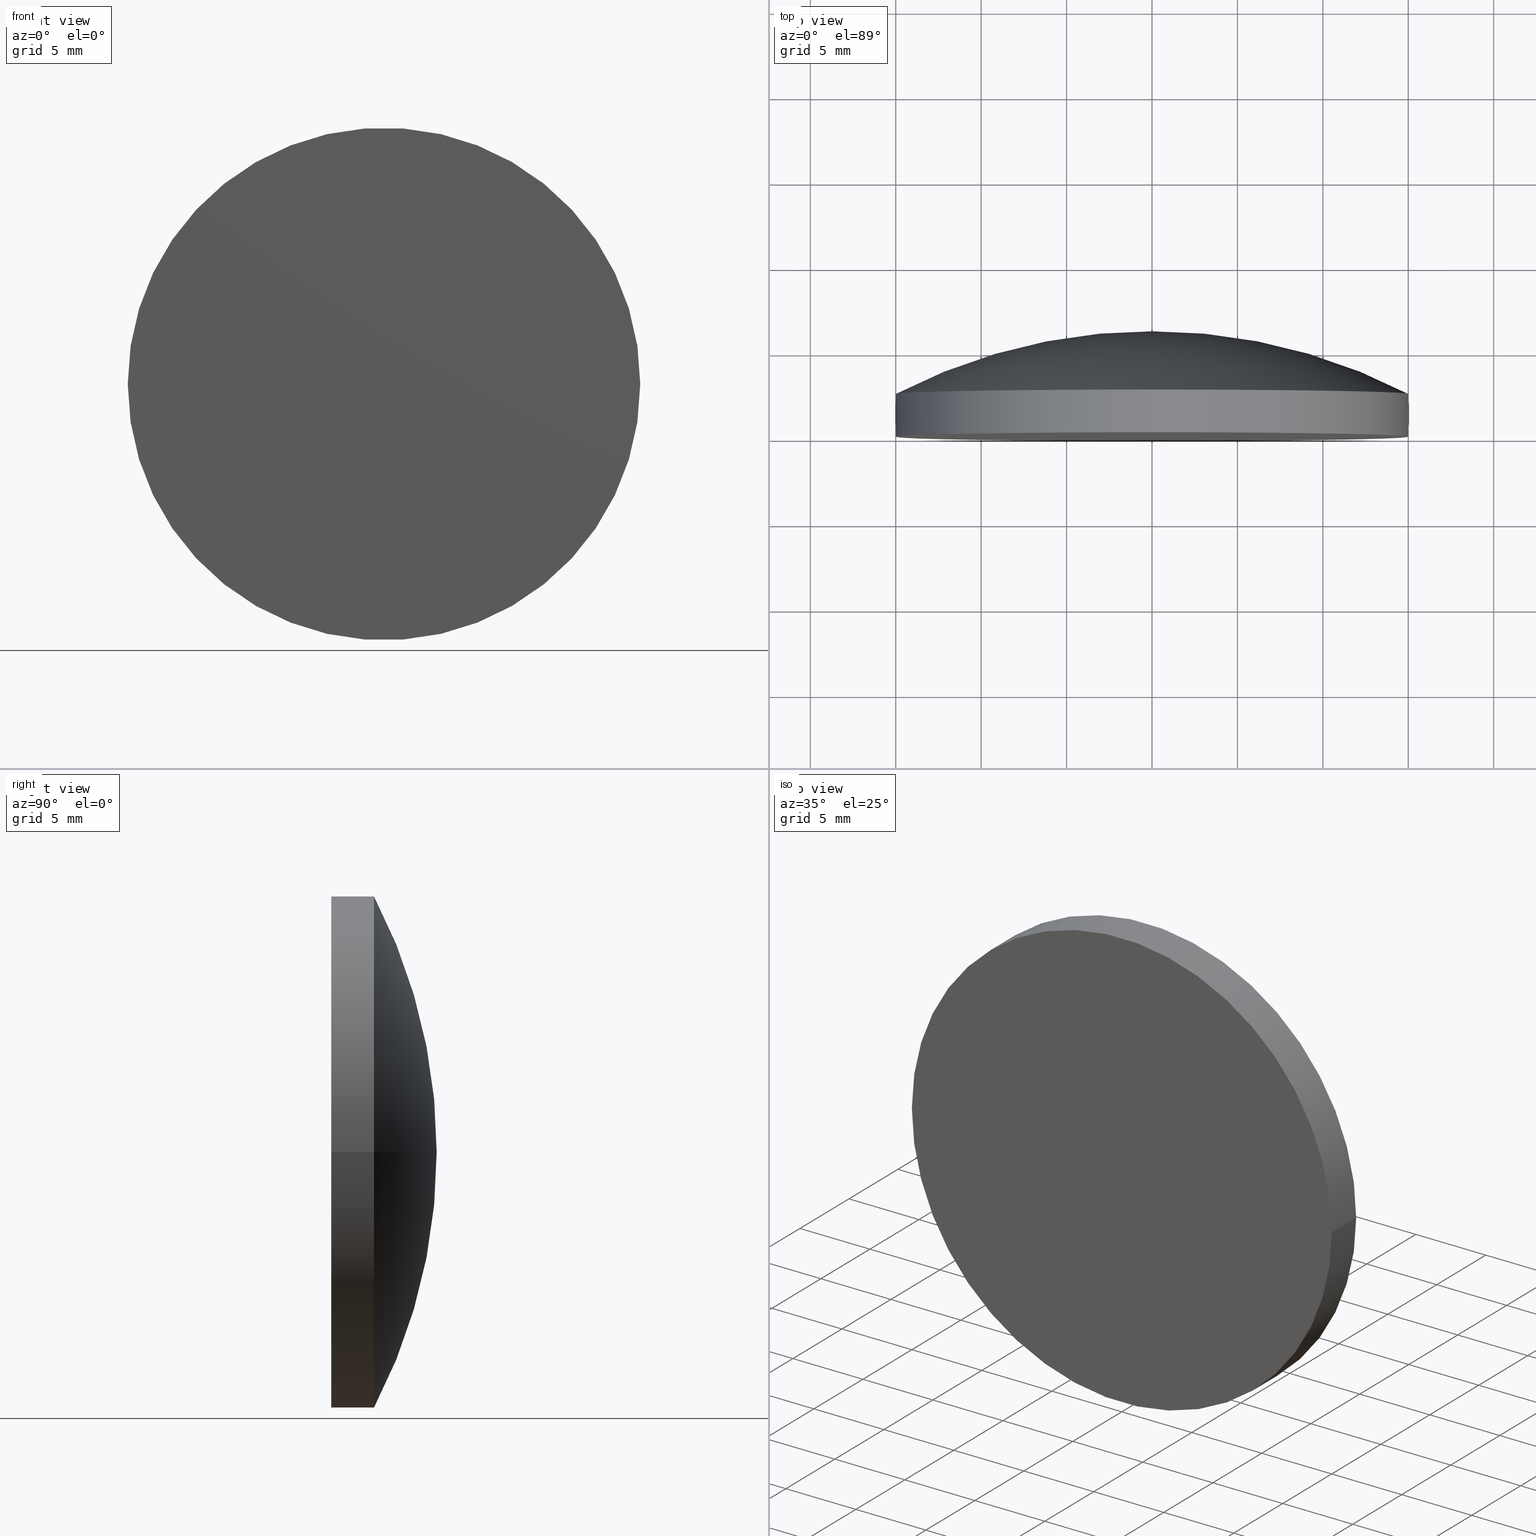
[diagram: canonical four-view strip — front | top / right | iso, engineering-drawing reading convention]
A machine part, canonical four-view strip (front | top / right | iso — engineering-drawing reading convention). The complete STEP part file that produces these views, byte-faithful:
ISO-10303-21;
HEADER;
FILE_DESCRIPTION (( 'STEP AP203' ),
    '1' );
FILE_NAME ('100573.STEP',
    '2024-05-09T08:19:51',
    ( '' ),
    ( '' ),
    'SwSTEP 2.0',
    'SolidWorks 2020',
    '' );
FILE_SCHEMA (( 'CONFIG_CONTROL_DESIGN' ));
ENDSEC;

DATA;
#1 = DIRECTION ( 'NONE',  ( -1.000000000000000000, 2.242870150788508378E-17, 0.000000000000000000 ) ) ;
#2 =( NAMED_UNIT ( * ) PLANE_ANGLE_UNIT ( ) SI_UNIT ( $, .RADIAN. ) );
#3 = COORDINATED_UNIVERSAL_TIME_OFFSET ( 8, 0, .AHEAD. ) ;
#4 = DIRECTION ( 'NONE',  ( 2.242870150788507762E-17, 1.000000000000000000, -0.000000000000000000 ) ) ;
#5 = AXIS2_PLACEMENT_3D ( 'NONE', #77, #144, #67 ) ;
#6 = LOCAL_TIME ( 16, 19, 51.00000000000000000, #181 ) ;
#7 = ADVANCED_FACE ( 'NONE', ( #185 ), #138, .T. ) ;
#8 = CARTESIAN_POINT ( 'NONE',  ( -2.407412430484044816E-32, -1.734723475976807094E-15, 0.000000000000000000 ) ) ;
#9 = APPROVAL ( #25, 'δָ��' ) ;
#10 = CC_DESIGN_APPROVAL ( #115, ( #146 ) ) ;
#11 = AXIS2_PLACEMENT_3D ( 'NONE', #190, #4, #35 ) ;
#12 = CIRCLE ( 'NONE', #159, 32.50000000000000711 ) ;
#13 = EDGE_LOOP ( 'NONE', ( #170, #168, #19, #45 ) ) ;
#14 = CC_DESIGN_PERSON_AND_ORGANIZATION_ASSIGNMENT ( #110, #176, ( #111 ) ) ;
#15 = DATE_TIME_ROLE ( 'creation_date' ) ;
#16 = DIRECTION ( 'NONE',  ( 2.242870150788507762E-17, 1.000000000000000000, -0.000000000000000000 ) ) ;
#17 = CALENDAR_DATE ( 2024, 9, 5 ) ;
#18 = SHAPE_DEFINITION_REPRESENTATION ( #59, #171 ) ;
#19 = ORIENTED_EDGE ( 'NONE', *, *, #46, .F. ) ;
#20 = PRODUCT_RELATED_PRODUCT_CATEGORY ( 'detail', '', ( #111 ) ) ;
#21 = DIRECTION ( 'NONE',  ( 2.242870150788507762E-17, 1.000000000000000000, -0.000000000000000000 ) ) ;
#22 = DIRECTION ( 'NONE',  ( 2.242870150788507762E-17, 1.000000000000000000, -0.000000000000000000 ) ) ;
#23 = CC_DESIGN_APPROVAL ( #9, ( #64 ) ) ;
#24 = CC_DESIGN_PERSON_AND_ORGANIZATION_ASSIGNMENT ( #39, #54, ( #64 ) ) ;
#25 = APPROVAL_STATUS ( 'not_yet_approved' ) ;
#26 = AXIS2_PLACEMENT_3D ( 'NONE', #8, #16, #1 ) ;
#27 = ORIENTED_EDGE ( 'NONE', *, *, #145, .T. ) ;
#28 = ORIENTED_EDGE ( 'NONE', *, *, #188, .T. ) ;
#29 = ORIENTED_EDGE ( 'NONE', *, *, #145, .F. ) ;
#30 = CC_DESIGN_PERSON_AND_ORGANIZATION_ASSIGNMENT ( #189, #174, ( #146 ) ) ;
#31 = DIRECTION ( 'NONE',  ( -1.000000000000000000, 2.242870150788507762E-17, 0.000000000000000000 ) ) ;
#32 = APPLICATION_PROTOCOL_DEFINITION ( 'international standard', 'config_control_design', 1994, #101 ) ;
#33 = CYLINDRICAL_SURFACE ( 'NONE', #164, 15.00000000000000000 ) ;
#34 = ADVANCED_FACE ( 'NONE', ( #154 ), #136, .T. ) ;
#35 = DIRECTION ( 'NONE',  ( -1.000000000000000000, 2.891205793294678696E-17, 0.000000000000000000 ) ) ;
#36 = FACE_OUTER_BOUND ( 'NONE', #156, .T. ) ;
#37 = APPROVAL_DATE_TIME ( #51, #180 ) ;
#38 = CC_DESIGN_PERSON_AND_ORGANIZATION_ASSIGNMENT ( #153, #194, ( #90 ) ) ;
#39 = PERSON_AND_ORGANIZATION ( #78, #175 ) ;
#40 = CIRCLE ( 'NONE', #92, 15.00000000000000000 ) ;
#41 = CARTESIAN_POINT ( 'NONE',  ( -15.00000000000000000, 6.169999999999999929, 0.000000000000000000 ) ) ;
#42 = COORDINATED_UNIVERSAL_TIME_OFFSET ( 8, 0, .AHEAD. ) ;
#43 = EDGE_CURVE ( 'NONE', #127, #72, #56, .T. ) ;
#44 = CIRCLE ( 'NONE', #5, 32.50000000000000711 ) ;
#45 = ORIENTED_EDGE ( 'NONE', *, *, #43, .F. ) ;
#46 = EDGE_CURVE ( 'NONE', #72, #125, #40, .T. ) ;
#47 = DIRECTION ( 'NONE',  ( -0.000000000000000000, 0.000000000000000000, -1.000000000000000000 ) ) ;
#48 = DIRECTION ( 'NONE',  ( -2.242870150788507762E-17, -1.000000000000000000, 0.000000000000000000 ) ) ;
#49 = DIRECTION ( 'NONE',  ( 2.242870150788507762E-17, 1.000000000000000000, -0.000000000000000000 ) ) ;
#50 = MANIFOLD_SOLID_BREP ( '��ת2', #113 ) ;
#51 = DATE_AND_TIME ( #17, #6 ) ;
#52 = CC_DESIGN_PERSON_AND_ORGANIZATION_ASSIGNMENT ( #133, #187, ( #146 ) ) ;
#53 = CALENDAR_DATE ( 2024, 9, 5 ) ;
#54 = PERSON_AND_ORGANIZATION_ROLE ( 'creator' ) ;
#55 = AXIS2_PLACEMENT_3D ( 'NONE', #102, #197, #74 ) ;
#56 = LINE ( 'NONE', #41, #198 ) ;
#57 = ORIENTED_EDGE ( 'NONE', *, *, #132, .F. ) ;
#58 = EDGE_LOOP ( 'NONE', ( #29, #28, #163 ) ) ;
#59 = PRODUCT_DEFINITION_SHAPE ( 'NONE', 'NONE',  #64 ) ;
#60 = CC_DESIGN_DATE_AND_TIME_ASSIGNMENT ( #70, #82, ( #90 ) ) ;
#61 = PERSON_AND_ORGANIZATION ( #78, #175 ) ;
#62 =( NAMED_UNIT ( * ) SI_UNIT ( $, .STERADIAN. ) SOLID_ANGLE_UNIT ( ) );
#63 = DATE_AND_TIME ( #109, #96 ) ;
#64 = PRODUCT_DEFINITION ( 'δ֪', '', #146, #95 ) ;
#65 = TOROIDAL_SURFACE ( 'NONE', #80, -0.002703305825795567375, 32.50000000000000711 ) ;
#66 = UNCERTAINTY_MEASURE_WITH_UNIT (LENGTH_MEASURE( 1.000000000000000082E-05 ), #98, 'distance_accuracy_value', 'NONE');
#67 = DIRECTION ( 'NONE',  ( 1.000000000000000000, 0.000000000000000000, 1.224646799147353454E-16 ) ) ;
#68 = LOCAL_TIME ( 16, 19, 51.00000000000000000, #195 ) ;
#69 = APPROVAL_PERSON_ORGANIZATION ( #84, #9, #199 ) ;
#70 = DATE_AND_TIME ( #53, #68 ) ;
#71 = DIRECTION ( 'NONE',  ( 2.242870150788507762E-17, 1.000000000000000000, -0.000000000000000000 ) ) ;
#72 = VERTEX_POINT ( 'NONE', #165 ) ;
#73 = CALENDAR_DATE ( 2024, 9, 5 ) ;
#74 = DIRECTION ( 'NONE',  ( -1.000000000000000000, 0.000000000000000000, 0.000000000000000000 ) ) ;
#75 = EDGE_LOOP ( 'NONE', ( #126, #27, #57 ) ) ;
#76 = AXIS2_PLACEMENT_3D ( 'NONE', #123, #196, #182 ) ;
#77 = CARTESIAN_POINT ( 'NONE',  ( -0.002703305825796158048, -26.32999988757135412, -3.310594826676934179E-19 ) ) ;
#78 = PERSON ( 'δָ��', 'δָ��', 'δָ��', ('δָ��'), ('δָ��'), ('δָ��') ) ;
#79 = APPLICATION_PROTOCOL_DEFINITION ( 'international standard', 'config_control_design', 1994, #139 ) ;
#80 = AXIS2_PLACEMENT_3D ( 'NONE', #108, #49, #31 ) ;
#81 = CARTESIAN_POINT ( 'NONE',  ( 15.00000000000000178, 2.499999999999997780, 1.836970198721029983E-15 ) ) ;
#82 = DATE_TIME_ROLE ( 'classification_date' ) ;
#83 = CARTESIAN_POINT ( 'NONE',  ( -2.407412430484044816E-32, -1.734723475976807094E-15, 0.000000000000000000 ) ) ;
#84 = PERSON_AND_ORGANIZATION ( #78, #175 ) ;
#85 = ORIENTED_EDGE ( 'NONE', *, *, #43, .T. ) ;
#86 = LOCAL_TIME ( 16, 19, 51.00000000000000000, #122 ) ;
#87 = CARTESIAN_POINT ( 'NONE',  ( 15.00000000000000000, 6.169999999999999929, 1.836970198721029589E-15 ) ) ;
#88 = AXIS2_PLACEMENT_3D ( 'NONE', #151, #48, #161 ) ;
#89 = DATE_AND_TIME ( #73, #184 ) ;
#90 = SECURITY_CLASSIFICATION ( '', '', #97 ) ;
#91 = ORIENTED_EDGE ( 'NONE', *, *, #155, .F. ) ;
#92 = AXIS2_PLACEMENT_3D ( 'NONE', #157, #167, #103 ) ;
#93 = FACE_OUTER_BOUND ( 'NONE', #201, .T. ) ;
#94 = MECHANICAL_CONTEXT ( 'NONE', #101, 'mechanical' ) ;
#95 = DESIGN_CONTEXT ( 'detailed design', #139, 'design' ) ;
#96 = LOCAL_TIME ( 16, 19, 51.00000000000000000, #3 ) ;
#97 = SECURITY_CLASSIFICATION_LEVEL ( 'unclassified' ) ;
#98 =( LENGTH_UNIT ( ) NAMED_UNIT ( * ) SI_UNIT ( .MILLI., .METRE. ) );
#99 = EDGE_CURVE ( 'NONE', #106, #125, #183, .T. ) ;
#100 = PERSON_AND_ORGANIZATION ( #78, #175 ) ;
#101 = APPLICATION_CONTEXT ( 'configuration controlled 3d designs of mechanical parts and assemblies' ) ;
#102 = CARTESIAN_POINT ( 'NONE',  ( 1.383850883036509511E-16, 6.169999999999999929, 0.000000000000000000 ) ) ;
#103 = DIRECTION ( 'NONE',  ( -1.000000000000000000, 2.891205793294678696E-17, 0.000000000000000000 ) ) ;
#104 = CALENDAR_DATE ( 2024, 9, 5 ) ;
#105 = ORIENTED_EDGE ( 'NONE', *, *, #188, .F. ) ;
#106 = VERTEX_POINT ( 'NONE', #141 ) ;
#107 = AXIS2_PLACEMENT_3D ( 'NONE', #83, #71, #191 ) ;
#108 = CARTESIAN_POINT ( 'NONE',  ( -5.903819642362473363E-16, -26.32999988757135412, 0.000000000000000000 ) ) ;
#109 = CALENDAR_DATE ( 2024, 9, 5 ) ;
#110 = PERSON_AND_ORGANIZATION ( #78, #175 ) ;
#111 = PRODUCT ( '100573', '100573', '', ( #94 ) ) ;
#112 = PLANE ( 'NONE',  #88 ) ;
#113 = CLOSED_SHELL ( 'NONE', ( #7, #140, #34, #142, #169 ) ) ;
#114 = EDGE_CURVE ( 'NONE', #106, #127, #152, .T. ) ;
#115 = APPROVAL ( #128, 'δָ��' ) ;
#116 = CIRCLE ( 'NONE', #26, 15.00000000000000000 ) ;
#117 = APPROVAL_STATUS ( 'not_yet_approved' ) ;
#118 = ORIENTED_EDGE ( 'NONE', *, *, #114, .F. ) ;
#119 = CC_DESIGN_APPROVAL ( #180, ( #90 ) ) ;
#120 = APPROVAL_ROLE ( '' ) ;
#121 = VECTOR ( 'NONE', #22, 1000.000000000000000 ) ;
#122 = COORDINATED_UNIVERSAL_TIME_OFFSET ( 8, 0, .AHEAD. ) ;
#123 = CARTESIAN_POINT ( 'NONE',  ( -5.903819642362473363E-16, -26.32999988757135412, 0.000000000000000000 ) ) ;
#124 = APPROVAL_DATE_TIME ( #89, #9 ) ;
#125 = VERTEX_POINT ( 'NONE', #81 ) ;
#126 = ORIENTED_EDGE ( 'NONE', *, *, #46, .T. ) ;
#127 = VERTEX_POINT ( 'NONE', #162 ) ;
#128 = APPROVAL_STATUS ( 'not_yet_approved' ) ;
#129 = CC_DESIGN_SECURITY_CLASSIFICATION ( #90, ( #146 ) ) ;
#130 = ORIENTED_EDGE ( 'NONE', *, *, #114, .T. ) ;
#131 = APPROVAL_ROLE ( '' ) ;
#132 = EDGE_CURVE ( 'NONE', #72, #143, #12, .T. ) ;
#133 = PERSON_AND_ORGANIZATION ( #78, #175 ) ;
#134 = DIRECTION ( 'NONE',  ( 0.000000000000000000, 0.000000000000000000, 1.000000000000000000 ) ) ;
#135 = CARTESIAN_POINT ( 'NONE',  ( 1.383850883036509511E-16, 6.169999999999999929, 0.000000000000000000 ) ) ;
#136 = TOROIDAL_SURFACE ( 'NONE', #76, -0.002703305825795567375, 32.50000000000000711 ) ;
#137 = CIRCLE ( 'NONE', #11, 15.00000000000000000 ) ;
#138 = CYLINDRICAL_SURFACE ( 'NONE', #55, 15.00000000000000000 ) ;
#139 = APPLICATION_CONTEXT ( 'configuration controlled 3d designs of mechanical parts and assemblies' ) ;
#140 = ADVANCED_FACE ( 'NONE', ( #179 ), #65, .T. ) ;
#141 = CARTESIAN_POINT ( 'NONE',  ( 15.00000000000000000, -2.071153998595083505E-15, 1.836970198721029589E-15 ) ) ;
#142 = ADVANCED_FACE ( 'NONE', ( #36 ), #112, .T. ) ;
#143 = VERTEX_POINT ( 'NONE', #177 ) ;
#144 = DIRECTION ( 'NONE',  ( -1.224646799147353207E-16, 2.746723751066287444E-33, 1.000000000000000000 ) ) ;
#145 = EDGE_CURVE ( 'NONE', #125, #143, #44, .T. ) ;
#146 = PRODUCT_DEFINITION_FORMATION_WITH_SPECIFIED_SOURCE ( '�κ�', '', #111, .NOT_KNOWN. ) ;
#147 = DIRECTION ( 'NONE',  ( 2.242870150788507762E-17, 1.000000000000000000, -0.000000000000000000 ) ) ;
#148 = CC_DESIGN_DATE_AND_TIME_ASSIGNMENT ( #166, #15, ( #64 ) ) ;
#149 = DIRECTION ( 'NONE',  ( -1.000000000000000000, 0.000000000000000000, 0.000000000000000000 ) ) ;
#150 = APPROVAL_PERSON_ORGANIZATION ( #100, #180, #120 ) ;
#151 = CARTESIAN_POINT ( 'NONE',  ( -2.437327801797070117E-32, -1.086700360669653000E-15, 0.000000000000000000 ) ) ;
#152 = CIRCLE ( 'NONE', #107, 15.00000000000000000 ) ;
#153 = PERSON_AND_ORGANIZATION ( #78, #175 ) ;
#154 = FACE_OUTER_BOUND ( 'NONE', #58, .T. ) ;
#155 = EDGE_CURVE ( 'NONE', #127, #106, #116, .T. ) ;
#156 = EDGE_LOOP ( 'NONE', ( #91, #118 ) ) ;
#157 = CARTESIAN_POINT ( 'NONE',  ( 5.607175376971264475E-17, 2.499999999999997780, 0.000000000000000000 ) ) ;
#158 = ORIENTED_EDGE ( 'NONE', *, *, #99, .F. ) ;
#159 = AXIS2_PLACEMENT_3D ( 'NONE', #160, #47, #172 ) ;
#160 = CARTESIAN_POINT ( 'NONE',  ( 0.002703305825794977135, -26.32999988757135412, 0.000000000000000000 ) ) ;
#161 = DIRECTION ( 'NONE',  ( 1.000000000000000000, -2.242870150788507762E-17, 0.000000000000000000 ) ) ;
#162 = CARTESIAN_POINT ( 'NONE',  ( -15.00000000000000000, -1.398292953358530881E-15, 0.000000000000000000 ) ) ;
#163 = ORIENTED_EDGE ( 'NONE', *, *, #132, .T. ) ;
#164 = AXIS2_PLACEMENT_3D ( 'NONE', #135, #147, #149 ) ;
#165 = CARTESIAN_POINT ( 'NONE',  ( -15.00000000000000355, 2.499999999999998668, 0.000000000000000000 ) ) ;
#166 = DATE_AND_TIME ( #104, #86 ) ;
#167 = DIRECTION ( 'NONE',  ( 2.242870150788507762E-17, 1.000000000000000000, -0.000000000000000000 ) ) ;
#168 = ORIENTED_EDGE ( 'NONE', *, *, #99, .T. ) ;
#169 = ADVANCED_FACE ( 'NONE', ( #93 ), #33, .T. ) ;
#170 = ORIENTED_EDGE ( 'NONE', *, *, #155, .T. ) ;
#171 = ADVANCED_BREP_SHAPE_REPRESENTATION ( '100573', ( #50, #200 ), #178 ) ;
#172 = DIRECTION ( 'NONE',  ( -1.000000000000000000, 0.000000000000000000, 0.000000000000000000 ) ) ;
#173 = DIRECTION ( 'NONE',  ( 1.000000000000000000, 0.000000000000000000, 0.000000000000000000 ) ) ;
#174 = PERSON_AND_ORGANIZATION_ROLE ( 'creator' ) ;
#175 = ORGANIZATION ( 'δָ��', 'δָ��', '' ) ;
#176 = PERSON_AND_ORGANIZATION_ROLE ( 'design_owner' ) ;
#177 = CARTESIAN_POINT ( 'NONE',  ( 1.383850883036509511E-16, 6.169999999999999929, 0.000000000000000000 ) ) ;
#178 =( GEOMETRIC_REPRESENTATION_CONTEXT ( 3 ) GLOBAL_UNCERTAINTY_ASSIGNED_CONTEXT ( ( #66 ) ) GLOBAL_UNIT_ASSIGNED_CONTEXT ( ( #98, #2, #62 ) ) REPRESENTATION_CONTEXT ( 'NONE', 'WORKASPACE' ) );
#179 = FACE_OUTER_BOUND ( 'NONE', #75, .T. ) ;
#180 = APPROVAL ( #117, 'δָ��' ) ;
#181 = COORDINATED_UNIVERSAL_TIME_OFFSET ( 8, 0, .AHEAD. ) ;
#182 = DIRECTION ( 'NONE',  ( -1.000000000000000000, 2.242870150788507762E-17, 0.000000000000000000 ) ) ;
#183 = LINE ( 'NONE', #87, #121 ) ;
#184 = LOCAL_TIME ( 16, 19, 51.00000000000000000, #42 ) ;
#185 = FACE_OUTER_BOUND ( 'NONE', #13, .T. ) ;
#186 = APPROVAL_DATE_TIME ( #63, #115 ) ;
#187 = PERSON_AND_ORGANIZATION_ROLE ( 'design_supplier' ) ;
#188 = EDGE_CURVE ( 'NONE', #125, #72, #137, .T. ) ;
#189 = PERSON_AND_ORGANIZATION ( #78, #175 ) ;
#190 = CARTESIAN_POINT ( 'NONE',  ( 5.607175376971264475E-17, 2.499999999999997780, 0.000000000000000000 ) ) ;
#191 = DIRECTION ( 'NONE',  ( -1.000000000000000000, 2.242870150788508378E-17, 0.000000000000000000 ) ) ;
#192 = CARTESIAN_POINT ( 'NONE',  ( 0.000000000000000000, 0.000000000000000000, 0.000000000000000000 ) ) ;
#193 = APPROVAL_PERSON_ORGANIZATION ( #61, #115, #131 ) ;
#194 = PERSON_AND_ORGANIZATION_ROLE ( 'classification_officer' ) ;
#195 = COORDINATED_UNIVERSAL_TIME_OFFSET ( 8, 0, .AHEAD. ) ;
#196 = DIRECTION ( 'NONE',  ( 2.242870150788507762E-17, 1.000000000000000000, -0.000000000000000000 ) ) ;
#197 = DIRECTION ( 'NONE',  ( 2.242870150788507762E-17, 1.000000000000000000, -0.000000000000000000 ) ) ;
#198 = VECTOR ( 'NONE', #21, 1000.000000000000000 ) ;
#199 = APPROVAL_ROLE ( '' ) ;
#200 = AXIS2_PLACEMENT_3D ( 'NONE', #192, #134, #173 ) ;
#201 = EDGE_LOOP ( 'NONE', ( #158, #130, #85, #105 ) ) ;
ENDSEC;
END-ISO-10303-21;
